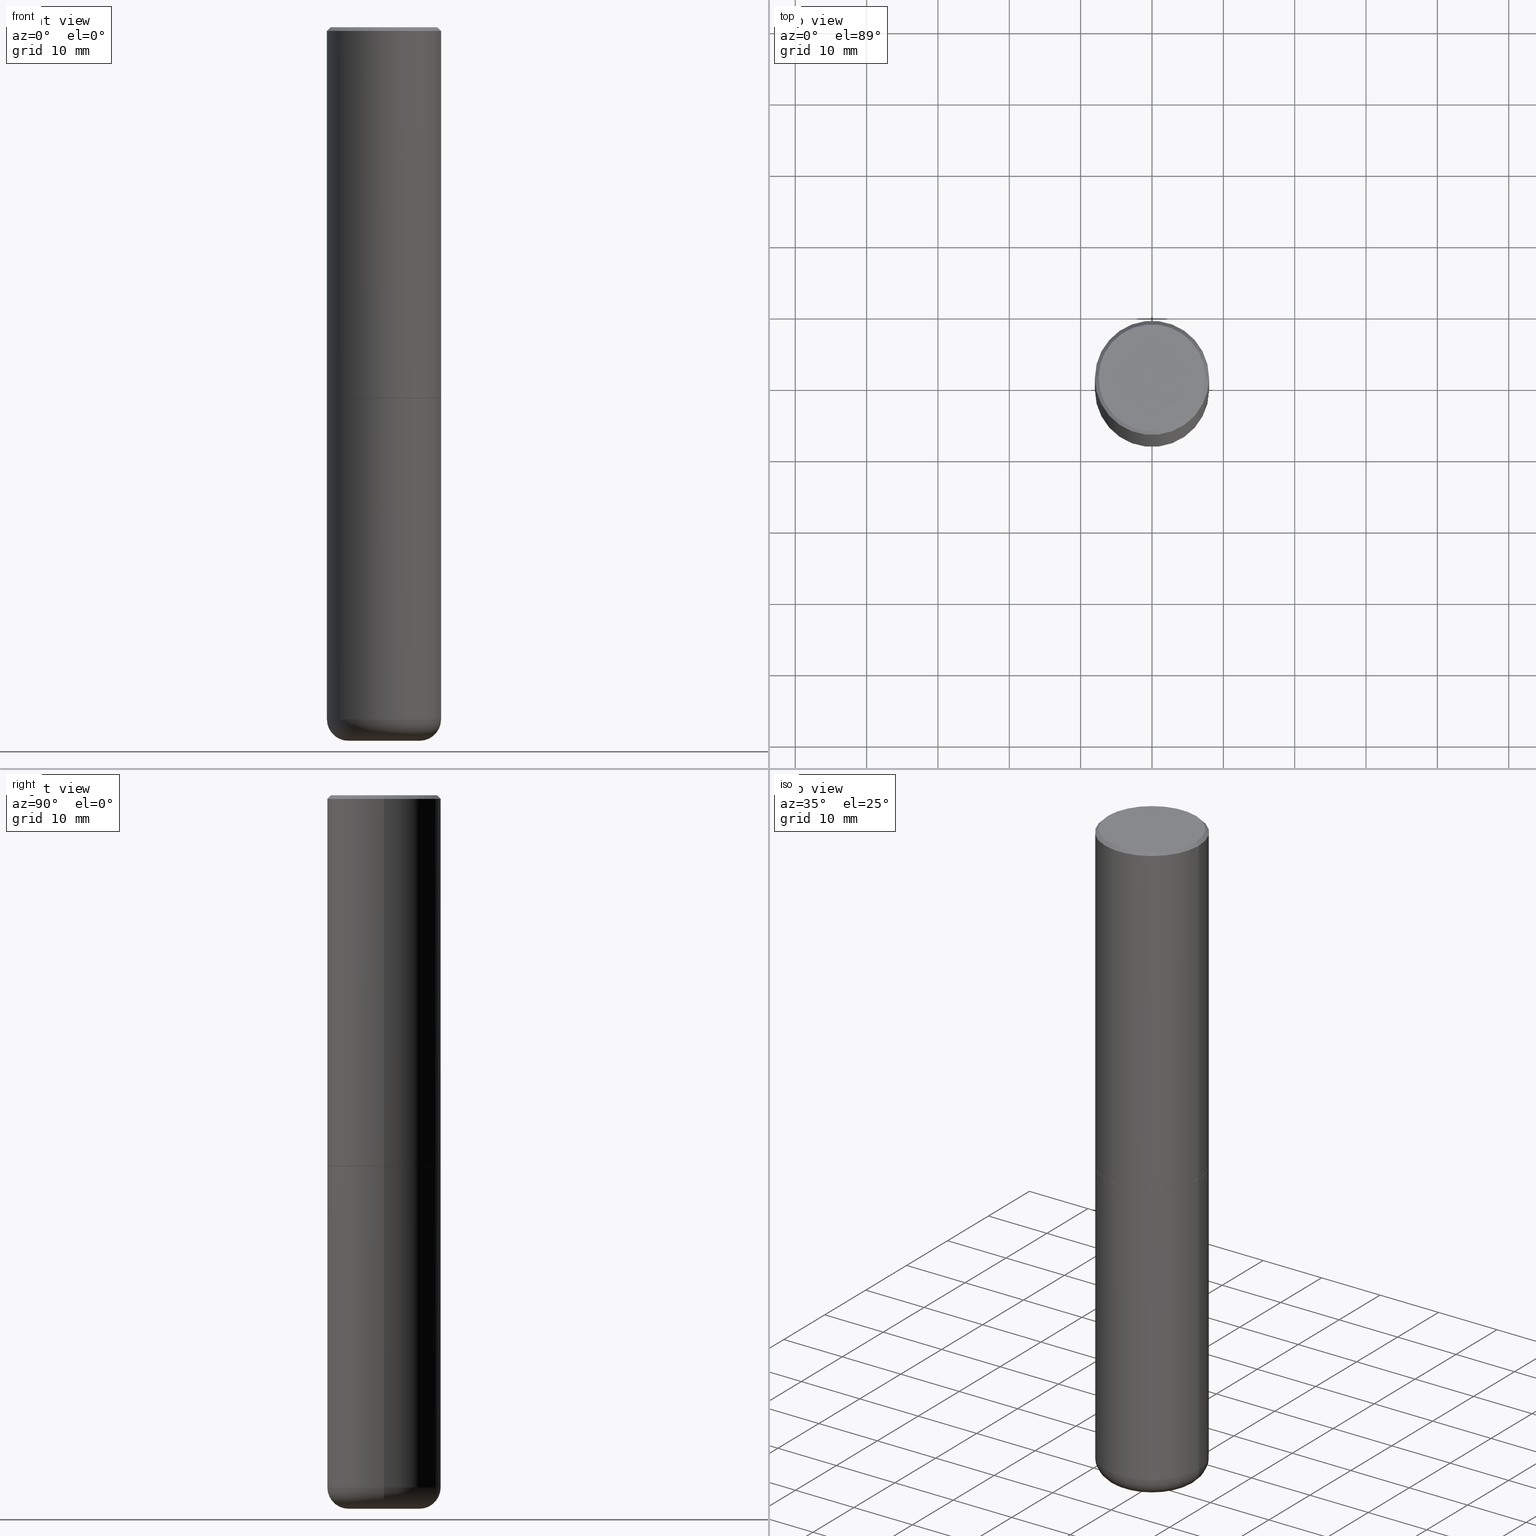
[diagram: canonical four-view strip — front | top / right | iso, engineering-drawing reading convention]
A machine part, canonical four-view strip (front | top / right | iso — engineering-drawing reading convention). The complete STEP part file that produces these views, byte-faithful:
ISO-10303-21;
HEADER;
FILE_DESCRIPTION (( 'STEP AP203' ),
    '1' );
FILE_NAME ('74770.STEP',
    '2024-05-02T19:17:29',
    ( '' ),
    ( '' ),
    'SwSTEP 2.0',
    'SolidWorks 2023',
    '' );
FILE_SCHEMA (( 'CONFIG_CONTROL_DESIGN' ));
ENDSEC;

DATA;
#1 = CARTESIAN_POINT ( 'NONE',  ( 4.890937612370289799E-31, -6.982962677686315028E-17, -0.02000000000000006981 ) ) ;
#2 = DIRECTION ( 'NONE',  ( -2.445468806185136597E-29, 3.491481338843145583E-15, 1.000000000000000000 ) ) ;
#3 = AXIS2_PLACEMENT_3D ( 'NONE', #181, #284, #86 ) ;
#4 = FACE_OUTER_BOUND ( 'NONE', #141, .T. ) ;
#5 = ADVANCED_FACE ( 'NONE', ( #23 ), #113, .T. ) ;
#6 = DIRECTION ( 'NONE',  ( -2.445468806185136597E-29, 3.491481338843145583E-15, 1.000000000000000000 ) ) ;
#7 = CARTESIAN_POINT ( 'NONE',  ( 0.3149499999999999522, -2.230543471175006661E-15, -0.02000000000000006981 ) ) ;
#8 = EDGE_LOOP ( 'NONE', ( #165, #135, #241, #230 ) ) ;
#9 = PLANE ( 'NONE',  #18 ) ;
#10 = AXIS2_PLACEMENT_3D ( 'NONE', #357, #205, #237 ) ;
#11 = PERSON_AND_ORGANIZATION_ROLE ( 'classification_officer' ) ;
#12 = VECTOR ( 'NONE', #303, 39.37007874015748143 ) ;
#13 = EDGE_CURVE ( 'NONE', #132, #396, #268, .T. ) ;
#14 = VERTEX_POINT ( 'NONE', #114 ) ;
#15 = PERSON_AND_ORGANIZATION ( #124, #193 ) ;
#16 = ORIENTED_EDGE ( 'NONE', *, *, #281, .T. ) ;
#17 = ORIENTED_EDGE ( 'NONE', *, *, #223, .F. ) ;
#18 = AXIS2_PLACEMENT_3D ( 'NONE', #391, #97, #300 ) ;
#19 = PRODUCT_DEFINITION_FORMATION_WITH_SPECIFIED_SOURCE ( 'ANY', '', #174, .NOT_KNOWN. ) ;
#20 = LINE ( 'NONE', #283, #341 ) ;
#21 = CC_DESIGN_PERSON_AND_ORGANIZATION_ASSIGNMENT ( #372, #178, ( #174 ) ) ;
#22 = CARTESIAN_POINT ( 'NONE',  ( 5.006363740022209999E-29, -7.147760596879685046E-15, -2.047199999999999243 ) ) ;
#23 = FACE_OUTER_BOUND ( 'NONE', #8, .T. ) ;
#24 = AXIS2_PLACEMENT_3D ( 'NONE', #265, #125, #297 ) ;
#25 = ORIENTED_EDGE ( 'NONE', *, *, #263, .F. ) ;
#26 = DIRECTION ( 'NONE',  ( -2.445468806185136877E-29, 3.491481338843145188E-15, 1.000000000000000000 ) ) ;
#27 = CARTESIAN_POINT ( 'NONE',  ( 5.006363740022209999E-29, -7.147760596879685046E-15, -2.047199999999999243 ) ) ;
#28 = CARTESIAN_POINT ( 'NONE',  ( 8.726305720484796028E-29, -1.820591954908441559E-15, -2.047200000000000131 ) ) ;
#29 = TOROIDAL_SURFACE ( 'NONE', #290, 0.1968500000000000250, 0.1181000000000000105 ) ;
#30 = LOCAL_TIME ( 15, 17, 29.00000000000000000, #142 ) ;
#31 = ADVANCED_BREP_SHAPE_REPRESENTATION ( '74770', ( #145, #289, #220 ), #323 ) ;
#32 = APPROVAL ( #365, 'UNSPECIFIED' ) ;
#33 = CARTESIAN_POINT ( 'NONE',  ( 0.000000000000000000, 0.000000000000000000, 0.000000000000000000 ) ) ;
#34 = DIRECTION ( 'NONE',  ( -1.000000000000000000, 6.982962677686265922E-15, -4.876176775795935793E-29 ) ) ;
#35 = DIRECTION ( 'NONE',  ( 1.000000000000000000, -6.982962677686265922E-15, 4.876176775795935232E-29 ) ) ;
#36 = ADVANCED_FACE ( 'NONE', ( #84 ), #219, .T. ) ;
#37 = CIRCLE ( 'NONE', #225, 0.1180999999999999966 ) ;
#38 = ORIENTED_EDGE ( 'NONE', *, *, #399, .F. ) ;
#39 = CARTESIAN_POINT ( 'NONE',  ( 0.2949499999999997679, -2.127023677808858891E-15, 1.835460370743323251E-16 ) ) ;
#40 =( CONVERSION_BASED_UNIT ( 'INCH', #43 ) LENGTH_UNIT ( ) NAMED_UNIT ( #308 ) );
#41 = UNCERTAINTY_MEASURE_WITH_UNIT (LENGTH_MEASURE( 1.000000000000000082E-05 ), #40, 'distance_accuracy_value', 'NONE');
#42 = DIRECTION ( 'NONE',  ( 1.000000000000000000, -6.982962677686265922E-15, 4.874125435057325556E-29 ) ) ;
#43 = LENGTH_MEASURE_WITH_UNIT ( LENGTH_MEASURE( 0.02539999999999999897 ), #98 );
#44 = CARTESIAN_POINT ( 'NONE',  ( 0.1968500000000000250, -1.470821428801063089E-14, -3.818900000000000183 ) ) ;
#45 = DIRECTION ( 'NONE',  ( 1.000000000000000000, 0.000000000000000000, 0.000000000000000000 ) ) ;
#46 = PRODUCT_DEFINITION_SHAPE ( 'NONE', 'NONE',  #168 ) ;
#47 = AXIS2_PLACEMENT_3D ( 'NONE', #89, #321, #35 ) ;
#48 = CARTESIAN_POINT ( 'NONE',  ( 9.627810689950883669E-29, -1.374596203102546341E-14, -3.937000000000000277 ) ) ;
#49 = ORIENTED_EDGE ( 'NONE', *, *, #103, .T. ) ;
#50 = CALENDAR_DATE ( 2024, 2, 5 ) ;
#51 = PERSON_AND_ORGANIZATION ( #124, #193 ) ;
#52 = ORIENTED_EDGE ( 'NONE', *, *, #414, .F. ) ;
#53 = ADVANCED_FACE ( 'NONE', ( #116 ), #29, .T. ) ;
#54 = EDGE_CURVE ( 'NONE', #118, #183, #61, .T. ) ;
#55 = CONICAL_SURFACE ( 'NONE', #115, 0.3139500000000000068, 0.7853981633976873100 ) ;
#56 = EDGE_LOOP ( 'NONE', ( #177, #413, #25, #264 ) ) ;
#57 = DIRECTION ( 'NONE',  ( -2.445468806185136597E-29, 3.491481338843145583E-15, 1.000000000000000000 ) ) ;
#58 = EDGE_CURVE ( 'NONE', #80, #224, #212, .T. ) ;
#59 = ORIENTED_EDGE ( 'NONE', *, *, #366, .T. ) ;
#60 = CIRCLE ( 'NONE', #155, 0.3149500000000002853 ) ;
#61 = LINE ( 'NONE', #376, #317 ) ;
#62 = FACE_OUTER_BOUND ( 'NONE', #354, .T. ) ;
#63 = CARTESIAN_POINT ( 'NONE',  ( 0.3149500000000000077, -9.347044692216978073E-15, -2.047199999999999687 ) ) ;
#64 = DIRECTION ( 'NONE',  ( 1.000000000000000000, -6.982962677686266711E-15, 0.000000000000000000 ) ) ;
#65 = VECTOR ( 'NONE', #340, 39.37007874015748143 ) ;
#66 = APPROVAL_PERSON_ORGANIZATION ( #307, #358, #243 ) ;
#67 = CARTESIAN_POINT ( 'NONE',  ( 0.3149499999999999522, -2.230543471175006661E-15, -0.02000000000000006981 ) ) ;
#68 = EDGE_CURVE ( 'NONE', #14, #411, #387, .T. ) ;
#69 = CARTESIAN_POINT ( 'NONE',  ( 9.339000823940418668E-29, -1.333361808490808928E-14, -3.818900000000000183 ) ) ;
#70 = ORIENTED_EDGE ( 'NONE', *, *, #380, .T. ) ;
#71 = ORIENTED_EDGE ( 'NONE', *, *, #153, .T. ) ;
#72 = CARTESIAN_POINT ( 'NONE',  ( 5.003918271216025517E-29, -7.144269115540843617E-15, -2.046199999999999797 ) ) ;
#73 = VECTOR ( 'NONE', #162, 39.37007874015748143 ) ;
#74 = DIRECTION ( 'NONE',  ( -2.445468806185136597E-29, 3.491481338843145583E-15, 1.000000000000000000 ) ) ;
#75 = EDGE_LOOP ( 'NONE', ( #52, #240, #248, #207 ) ) ;
#76 = DIRECTION ( 'NONE',  ( -1.000000000000000000, 6.982962677686265922E-15, -4.876176775795935793E-29 ) ) ;
#77 = CARTESIAN_POINT ( 'NONE',  ( 0.000000000000000000, 0.000000000000000000, 0.000000000000000000 ) ) ;
#78 = APPROVAL_ROLE ( '' ) ;
#79 = CIRCLE ( 'NONE', #367, 0.3149500000000000077 ) ;
#80 = VERTEX_POINT ( 'NONE', #148 ) ;
#81 = DIRECTION ( 'NONE',  ( -2.445468806185136597E-29, 3.491481338843145583E-15, 1.000000000000000000 ) ) ;
#82 = EDGE_CURVE ( 'NONE', #396, #224, #20, .T. ) ;
#83 = DIRECTION ( 'NONE',  ( 1.000000000000000000, -6.982962677686267499E-15, 0.000000000000000000 ) ) ;
#84 = FACE_OUTER_BOUND ( 'NONE', #112, .T. ) ;
#85 = ORIENTED_EDGE ( 'NONE', *, *, #223, .T. ) ;
#86 = DIRECTION ( 'NONE',  ( 1.000000000000000000, -6.982962677686269866E-15, 4.883557194083113462E-29 ) ) ;
#87 = DESIGN_CONTEXT ( 'detailed design', #371, 'design' ) ;
#88 = AXIS2_PLACEMENT_3D ( 'NONE', #361, #235, #76 ) ;
#89 = CARTESIAN_POINT ( 'NONE',  ( 0.000000000000000000, 0.000000000000000000, 0.000000000000000000 ) ) ;
#90 = DIRECTION ( 'NONE',  ( 1.000000000000000000, -6.982962677686264344E-15, 0.000000000000000000 ) ) ;
#91 = FACE_OUTER_BOUND ( 'NONE', #100, .T. ) ;
#92 = VERTEX_POINT ( 'NONE', #221 ) ;
#93 = DIRECTION ( 'NONE',  ( -2.445468806185136597E-29, 3.491481338843145583E-15, 1.000000000000000000 ) ) ;
#94 = EDGE_CURVE ( 'NONE', #92, #171, #146, .T. ) ;
#95 = DIRECTION ( 'NONE',  ( 1.000000000000000000, -6.982962677686267499E-15, 0.000000000000000000 ) ) ;
#96 = DIRECTION ( 'NONE',  ( 1.000000000000000000, -6.982962677686267499E-15, 0.000000000000000000 ) ) ;
#97 = DIRECTION ( 'NONE',  ( 2.438088387897960049E-29, -3.491481338843145188E-15, -1.000000000000000000 ) ) ;
#98 =( LENGTH_UNIT ( ) NAMED_UNIT ( * ) SI_UNIT ( $, .METRE. ) );
#99 = AXIS2_PLACEMENT_3D ( 'NONE', #373, #152, #343 ) ;
#100 = EDGE_LOOP ( 'NONE', ( #173, #403, #275, #199 ) ) ;
#101 = ORIENTED_EDGE ( 'NONE', *, *, #414, .T. ) ;
#102 = DIRECTION ( 'NONE',  ( -0.7071067811865465735, 2.468850131082246805E-15, -0.7071067811865484609 ) ) ;
#103 = EDGE_CURVE ( 'NONE', #14, #118, #255, .T. ) ;
#104 = DATE_AND_TIME ( #309, #280 ) ;
#105 = PERSON_AND_ORGANIZATION ( #124, #193 ) ;
#106 = VECTOR ( 'NONE', #102, 39.37007874015748143 ) ;
#107 = COORDINATED_UNIVERSAL_TIME_OFFSET ( 5, 0, .BEHIND. ) ;
#108 = ADVANCED_FACE ( 'NONE', ( #315 ), #378, .F. ) ;
#109 = EDGE_LOOP ( 'NONE', ( #16, #101, #144, #130 ) ) ;
#110 = CC_DESIGN_APPROVAL ( #32, ( #19 ) ) ;
#111 = APPROVAL_DATE_TIME ( #180, #32 ) ;
#112 = EDGE_LOOP ( 'NONE', ( #400, #85, #197, #359 ) ) ;
#113 = CYLINDRICAL_SURFACE ( 'NONE', #129, 0.3149500000000001743 ) ;
#114 = CARTESIAN_POINT ( 'NONE',  ( 0.3139500000000000068, -9.340061729539288903E-15, -2.047199999999999243 ) ) ;
#115 = AXIS2_PLACEMENT_3D ( 'NONE', #27, #154, #194 ) ;
#116 = FACE_OUTER_BOUND ( 'NONE', #258, .T. ) ;
#117 = CC_DESIGN_PERSON_AND_ORGANIZATION_ASSIGNMENT ( #402, #11, ( #412 ) ) ;
#118 = VERTEX_POINT ( 'NONE', #327 ) ;
#119 = DIRECTION ( 'NONE',  ( -2.445468806185136597E-29, 3.491481338843145583E-15, 1.000000000000000000 ) ) ;
#120 = VECTOR ( 'NONE', #401, 39.37007874015748143 ) ;
#121 = DIRECTION ( 'NONE',  ( -2.445468806185136597E-29, 3.491481338843145583E-15, 1.000000000000000000 ) ) ;
#122 = LOCAL_TIME ( 15, 17, 29.00000000000000000, #107 ) ;
#123 = CYLINDRICAL_SURFACE ( 'NONE', #47, 0.3149500000000001743 ) ;
#124 = PERSON ( 'UNSPECIFIED', 'UNSPECIFIED', 'UNSPECIFIED', ('UNSPECIFIED'), ('UNSPECIFIED'), ('UNSPECIFIED') ) ;
#125 = DIRECTION ( 'NONE',  ( 2.445468806185136597E-29, -3.491481338843145583E-15, -1.000000000000000000 ) ) ;
#126 = ADVANCED_FACE ( 'NONE', ( #270 ), #393, .T. ) ;
#127 = FACE_OUTER_BOUND ( 'NONE', #109, .T. ) ;
#128 = AXIS2_PLACEMENT_3D ( 'NONE', #33, #293, #267 ) ;
#129 = AXIS2_PLACEMENT_3D ( 'NONE', #257, #282, #415 ) ;
#130 = ORIENTED_EDGE ( 'NONE', *, *, #82, .F. ) ;
#131 = CARTESIAN_POINT ( 'NONE',  ( 5.003918271216025517E-29, -7.144269115540843617E-15, -2.046199999999999797 ) ) ;
#132 = VERTEX_POINT ( 'NONE', #295 ) ;
#133 = DIRECTION ( 'NONE',  ( 1.000000000000000000, -6.982962677686265922E-15, 4.874125435057325556E-29 ) ) ;
#134 = DATE_AND_TIME ( #301, #30 ) ;
#135 = ORIENTED_EDGE ( 'NONE', *, *, #311, .T. ) ;
#136 = DIRECTION ( 'NONE',  ( 1.000000000000000000, -6.982962677686269866E-15, 0.000000000000000000 ) ) ;
#137 = CIRCLE ( 'NONE', #328, 0.3139500000000000068 ) ;
#138 = SHAPE_DEFINITION_REPRESENTATION ( #46, #31 ) ;
#139 = PERSON_AND_ORGANIZATION ( #124, #193 ) ;
#140 = APPROVAL_STATUS ( 'not_yet_approved' ) ;
#141 = EDGE_LOOP ( 'NONE', ( #407, #364, #370, #397 ) ) ;
#142 = COORDINATED_UNIVERSAL_TIME_OFFSET ( 5, 0, .BEHIND. ) ;
#143 = CIRCLE ( 'NONE', #382, 0.2949499999999997679 ) ;
#144 = ORIENTED_EDGE ( 'NONE', *, *, #380, .F. ) ;
#145 = MANIFOLD_SOLID_BREP ( 'Body-Move/Copy2[1]', #298 ) ;
#146 = LINE ( 'NONE', #342, #322 ) ;
#147 = COORDINATED_UNIVERSAL_TIME_OFFSET ( 5, 0, .BEHIND. ) ;
#148 = CARTESIAN_POINT ( 'NONE',  ( -0.3149500000000000077, -8.002834994617451969E-15, -2.047199999999999687 ) ) ;
#149 = DIRECTION ( 'NONE',  ( 1.000000000000000000, -6.982962677686269866E-15, 0.000000000000000000 ) ) ;
#150 = AXIS2_PLACEMENT_3D ( 'NONE', #316, #151, #351 ) ;
#151 = DIRECTION ( 'NONE',  ( -2.438088387897960049E-29, 3.491481338843145188E-15, 1.000000000000000000 ) ) ;
#152 = DIRECTION ( 'NONE',  ( -2.445468806185136597E-29, 3.491481338843145583E-15, 1.000000000000000000 ) ) ;
#153 = EDGE_CURVE ( 'NONE', #411, #14, #137, .T. ) ;
#154 = DIRECTION ( 'NONE',  ( -2.445468806185136597E-29, 3.491481338843145583E-15, 1.000000000000000000 ) ) ;
#155 = AXIS2_PLACEMENT_3D ( 'NONE', #131, #93, #95 ) ;
#156 = CIRCLE ( 'NONE', #404, 0.1180999999999999966 ) ;
#157 = DIRECTION ( 'NONE',  ( 1.000000000000000000, -6.982962677686266711E-15, 4.876176775795936353E-29 ) ) ;
#158 = LOCAL_TIME ( 15, 17, 29.00000000000000000, #338 ) ;
#159 = DIRECTION ( 'NONE',  ( -1.000000000000000000, 7.105427357601005014E-15, 0.000000000000000000 ) ) ;
#160 = FACE_OUTER_BOUND ( 'NONE', #56, .T. ) ;
#161 = CC_DESIGN_DATE_AND_TIME_ASSIGNMENT ( #363, #369, ( #412 ) ) ;
#162 = DIRECTION ( 'NONE',  ( -0.7071067811867165487, 7.493145998870964739E-15, 0.7071067811863784858 ) ) ;
#163 = AXIS2_PLACEMENT_3D ( 'NONE', #228, #2, #90 ) ;
#164 = APPROVAL_PERSON_ORGANIZATION ( #51, #410, #337 ) ;
#165 = ORIENTED_EDGE ( 'NONE', *, *, #94, .F. ) ;
#166 = PLANE ( 'NONE',  #88 ) ;
#167 = APPLICATION_PROTOCOL_DEFINITION ( 'international standard', 'config_control_design', 1994, #345 ) ;
#168 = PRODUCT_DEFINITION ( 'UNKNOWN', '', #19, #87 ) ;
#169 = EDGE_LOOP ( 'NONE', ( #70, #379 ) ) ;
#170 = ORIENTED_EDGE ( 'NONE', *, *, #311, .F. ) ;
#171 = VERTEX_POINT ( 'NONE', #349 ) ;
#172 = FACE_OUTER_BOUND ( 'NONE', #204, .T. ) ;
#173 = ORIENTED_EDGE ( 'NONE', *, *, #68, .T. ) ;
#174 = PRODUCT ( '74770', '74770', '', ( #362 ) ) ;
#175 = LINE ( 'NONE', #7, #120 ) ;
#176 = AXIS2_PLACEMENT_3D ( 'NONE', #273, #6, #133 ) ;
#177 = ORIENTED_EDGE ( 'NONE', *, *, #184, .T. ) ;
#178 = PERSON_AND_ORGANIZATION_ROLE ( 'design_owner' ) ;
#179 = EDGE_LOOP ( 'NONE', ( #306, #250 ) ) ;
#180 = DATE_AND_TIME ( #50, #158 ) ;
#181 = CARTESIAN_POINT ( 'NONE',  ( 9.339000823940418668E-29, -1.333361808490808928E-14, -3.818900000000000183 ) ) ;
#182 = AXIS2_PLACEMENT_3D ( 'NONE', #48, #81, #83 ) ;
#183 = VERTEX_POINT ( 'NONE', #67 ) ;
#184 = EDGE_CURVE ( 'NONE', #118, #92, #60, .T. ) ;
#185 = DIRECTION ( 'NONE',  ( -2.445468806185136877E-29, 3.491481338843145188E-15, 1.000000000000000000 ) ) ;
#186 = EDGE_LOOP ( 'NONE', ( #236, #287 ) ) ;
#187 = AXIS2_PLACEMENT_3D ( 'NONE', #72, #74, #96 ) ;
#188 = ORIENTED_EDGE ( 'NONE', *, *, #320, .F. ) ;
#189 = ADVANCED_FACE ( 'NONE', ( #262 ), #288, .F. ) ;
#190 = DIRECTION ( 'NONE',  ( 1.000000000000000000, -6.982962677686264344E-15, 0.000000000000000000 ) ) ;
#191 = FACE_OUTER_BOUND ( 'NONE', #75, .T. ) ;
#192 = CIRCLE ( 'NONE', #10, 0.1968500000000000250 ) ;
#193 = ORGANIZATION ( 'UNSPECIFIED', 'UNSPECIFIED', '' ) ;
#194 = DIRECTION ( 'NONE',  ( 1.000000000000000000, -6.982962677686264344E-15, 0.000000000000000000 ) ) ;
#195 = CC_DESIGN_PERSON_AND_ORGANIZATION_ASSIGNMENT ( #15, #206, ( #19 ) ) ;
#196 = CARTESIAN_POINT ( 'NONE',  ( 0.000000000000000000, 0.000000000000000000, 0.000000000000000000 ) ) ;
#197 = ORIENTED_EDGE ( 'NONE', *, *, #281, .F. ) ;
#198 = CYLINDRICAL_SURFACE ( 'NONE', #128, 0.3149500000000000077 ) ;
#199 = ORIENTED_EDGE ( 'NONE', *, *, #103, .F. ) ;
#200 = DIRECTION ( 'NONE',  ( -2.445468806185136597E-29, 3.491481338843145583E-15, 1.000000000000000000 ) ) ;
#201 = CIRCLE ( 'NONE', #238, 0.3149500000000000077 ) ;
#202 = EDGE_CURVE ( 'NONE', #171, #183, #336, .T. ) ;
#203 = ORIENTED_EDGE ( 'NONE', *, *, #408, .F. ) ;
#204 = EDGE_LOOP ( 'NONE', ( #203, #188 ) ) ;
#205 = DIRECTION ( 'NONE',  ( -2.445468806185136597E-29, 3.491481338843145583E-15, 1.000000000000000000 ) ) ;
#206 = PERSON_AND_ORGANIZATION_ROLE ( 'creator' ) ;
#207 = ORIENTED_EDGE ( 'NONE', *, *, #58, .F. ) ;
#208 = CARTESIAN_POINT ( 'NONE',  ( -0.2949499999999997679, 2.094539655171994924E-15, 1.835460370743031619E-16 ) ) ;
#209 = DIRECTION ( 'NONE',  ( 0.000000000000000000, 0.000000000000000000, 1.000000000000000000 ) ) ;
#210 = ADVANCED_FACE ( 'NONE', ( #4 ), #313, .T. ) ;
#211 = CARTESIAN_POINT ( 'NONE',  ( 0.3149500000000000077, -1.553290218024537915E-14, -3.818900000000000183 ) ) ;
#212 = CIRCLE ( 'NONE', #99, 0.3149500000000000077 ) ;
#213 = CC_DESIGN_APPROVAL ( #410, ( #412 ) ) ;
#214 = SECURITY_CLASSIFICATION_LEVEL ( 'unclassified' ) ;
#215 = PRODUCT_RELATED_PRODUCT_CATEGORY ( 'detail', '', ( #174 ) ) ;
#216 =( NAMED_UNIT ( * ) PLANE_ANGLE_UNIT ( ) SI_UNIT ( $, .RADIAN. ) );
#217 = CARTESIAN_POINT ( 'NONE',  ( 0.3139500000000000068, -9.340061729539288903E-15, -2.047199999999999243 ) ) ;
#218 = ADVANCED_FACE ( 'NONE', ( #62 ), #266, .T. ) ;
#219 = TOROIDAL_SURFACE ( 'NONE', #3, 0.1968500000000000250, 0.1181000000000000105 ) ;
#220 = AXIS2_PLACEMENT_3D ( 'NONE', #77, #209, #45 ) ;
#221 = CARTESIAN_POINT ( 'NONE',  ( -0.3149500000000002853, -1.369195024882414317E-15, -2.046199999999999797 ) ) ;
#222 = VERTEX_POINT ( 'NONE', #384 ) ;
#223 = EDGE_CURVE ( 'NONE', #222, #132, #156, .T. ) ;
#224 = VERTEX_POINT ( 'NONE', #63 ) ;
#225 = AXIS2_PLACEMENT_3D ( 'NONE', #44, #394, #389 ) ;
#226 = DIRECTION ( 'NONE',  ( -1.000000000000000000, 6.982962677686266711E-15, 0.000000000000000000 ) ) ;
#227 = DIRECTION ( 'NONE',  ( 7.105427357601001859E-15, 1.000000000000000000, -3.491481338843145583E-15 ) ) ;
#228 = CARTESIAN_POINT ( 'NONE',  ( 5.006363740022209999E-29, -7.147760596879685046E-15, -2.047199999999999243 ) ) ;
#229 = ADVANCED_FACE ( 'NONE', ( #191 ), #319, .T. ) ;
#230 = ORIENTED_EDGE ( 'NONE', *, *, #202, .F. ) ;
#231 = CARTESIAN_POINT ( 'NONE',  ( -0.1968500000000000250, -1.193491470956433228E-14, -3.818900000000000183 ) ) ;
#232 = ORIENTED_EDGE ( 'NONE', *, *, #320, .T. ) ;
#233 = CARTESIAN_POINT ( 'NONE',  ( -0.3139500000000000068, -4.917011677960851648E-15, -2.047199999999999243 ) ) ;
#234 = ADVANCED_FACE ( 'NONE', ( #160 ), #123, .T. ) ;
#235 = DIRECTION ( 'NONE',  ( 2.438088387897960049E-29, -3.491481338843145188E-15, -1.000000000000000000 ) ) ;
#236 = ORIENTED_EDGE ( 'NONE', *, *, #68, .F. ) ;
#237 = DIRECTION ( 'NONE',  ( 1.000000000000000000, -6.982962677686267499E-15, 0.000000000000000000 ) ) ;
#238 = AXIS2_PLACEMENT_3D ( 'NONE', #329, #302, #136 ) ;
#239 = DATE_TIME_ROLE ( 'creation_date' ) ;
#240 = ORIENTED_EDGE ( 'NONE', *, *, #13, .T. ) ;
#241 = ORIENTED_EDGE ( 'NONE', *, *, #54, .T. ) ;
#242 = DIRECTION ( 'NONE',  ( 1.000000000000000000, -6.982962677686269866E-15, 0.000000000000000000 ) ) ;
#243 = APPROVAL_ROLE ( '' ) ;
#244 = CC_DESIGN_PERSON_AND_ORGANIZATION_ASSIGNMENT ( #406, #374, ( #19 ) ) ;
#245 = AXIS2_PLACEMENT_3D ( 'NONE', #346, #348, #226 ) ;
#246 = CLOSED_SHELL ( 'NONE', ( #251, #234, #210, #126, #5, #218, #108, #390 ) ) ;
#247 = CALENDAR_DATE ( 2024, 2, 5 ) ;
#248 = ORIENTED_EDGE ( 'NONE', *, *, #82, .T. ) ;
#249 = CARTESIAN_POINT ( 'NONE',  ( -0.3139500000000000068, -4.911713223612628457E-15, -2.047199999999999243 ) ) ;
#250 = ORIENTED_EDGE ( 'NONE', *, *, #377, .T. ) ;
#251 = ADVANCED_FACE ( 'NONE', ( #91 ), #55, .T. ) ;
#252 = VERTEX_POINT ( 'NONE', #324 ) ;
#253 = ORIENTED_EDGE ( 'NONE', *, *, #202, .T. ) ;
#254 = AXIS2_PLACEMENT_3D ( 'NONE', #22, #119, #312 ) ;
#255 = LINE ( 'NONE', #217, #65 ) ;
#256 = ADVANCED_FACE ( 'NONE', ( #127 ), #198, .T. ) ;
#257 = CARTESIAN_POINT ( 'NONE',  ( 0.000000000000000000, 0.000000000000000000, 0.000000000000000000 ) ) ;
#258 = EDGE_LOOP ( 'NONE', ( #17, #232, #59, #381 ) ) ;
#259 = CIRCLE ( 'NONE', #375, 0.3149499999999999522 ) ;
#260 = LOCAL_TIME ( 15, 17, 29.00000000000000000, #272 ) ;
#261 = DIRECTION ( 'NONE',  ( -2.445468806185136597E-29, 3.491481338843145583E-15, 1.000000000000000000 ) ) ;
#262 = FACE_OUTER_BOUND ( 'NONE', #169, .T. ) ;
#263 = EDGE_CURVE ( 'NONE', #183, #171, #259, .T. ) ;
#264 = ORIENTED_EDGE ( 'NONE', *, *, #54, .F. ) ;
#265 = CARTESIAN_POINT ( 'NONE',  ( 4.890937612370289799E-31, -6.982962677686315028E-17, -0.02000000000000006981 ) ) ;
#266 = CONICAL_SURFACE ( 'NONE', #163, 0.3139500000000000068, 0.7853981633976873100 ) ;
#267 = DIRECTION ( 'NONE',  ( 1.000000000000000000, -6.982962677686266711E-15, 4.876176775795936353E-29 ) ) ;
#268 = CIRCLE ( 'NONE', #285, 0.3149500000000000077 ) ;
#269 = EDGE_CURVE ( 'NONE', #411, #92, #386, .T. ) ;
#270 = FACE_OUTER_BOUND ( 'NONE', #353, .T. ) ;
#271 = FACE_OUTER_BOUND ( 'NONE', #179, .T. ) ;
#272 = COORDINATED_UNIVERSAL_TIME_OFFSET ( 5, 0, .BEHIND. ) ;
#273 = CARTESIAN_POINT ( 'NONE',  ( -4.488561081641444621E-45, 6.408475632635922878E-31, 1.835460370743176819E-16 ) ) ;
#274 = CC_DESIGN_APPROVAL ( #358, ( #168 ) ) ;
#275 = ORIENTED_EDGE ( 'NONE', *, *, #184, .F. ) ;
#276 =( NAMED_UNIT ( * ) SI_UNIT ( $, .STERADIAN. ) SOLID_ANGLE_UNIT ( ) );
#277 = PERSON_AND_ORGANIZATION_ROLE ( 'creator' ) ;
#278 = APPROVAL_DATE_TIME ( #104, #410 ) ;
#279 = AXIS2_PLACEMENT_3D ( 'NONE', #196, #121, #157 ) ;
#280 = LOCAL_TIME ( 15, 17, 29.00000000000000000, #147 ) ;
#281 = EDGE_CURVE ( 'NONE', #396, #132, #79, .T. ) ;
#282 = DIRECTION ( 'NONE',  ( -2.445468806185136597E-29, 3.491481338843145583E-15, 1.000000000000000000 ) ) ;
#283 = CARTESIAN_POINT ( 'NONE',  ( 0.3149500000000000077, -2.199284095337289871E-15, 1.535751875536930130E-29 ) ) ;
#284 = DIRECTION ( 'NONE',  ( -2.445468806185136597E-29, 3.491481338843145583E-15, 1.000000000000000000 ) ) ;
#285 = AXIS2_PLACEMENT_3D ( 'NONE', #318, #57, #149 ) ;
#286 = DIRECTION ( 'NONE',  ( -2.445468806185136877E-29, 3.491481338843145188E-15, 1.000000000000000000 ) ) ;
#287 = ORIENTED_EDGE ( 'NONE', *, *, #153, .F. ) ;
#288 = PLANE ( 'NONE',  #350 ) ;
#289 = MANIFOLD_SOLID_BREP ( 'Body-Move/Copy2[2]', #246 ) ;
#290 = AXIS2_PLACEMENT_3D ( 'NONE', #314, #339, #344 ) ;
#291 = CC_DESIGN_PERSON_AND_ORGANIZATION_ASSIGNMENT ( #139, #277, ( #168 ) ) ;
#292 = DIRECTION ( 'NONE',  ( -2.445468806185136597E-29, 3.491481338843145583E-15, 1.000000000000000000 ) ) ;
#293 = DIRECTION ( 'NONE',  ( -2.445468806185136597E-29, 3.491481338843145583E-15, 1.000000000000000000 ) ) ;
#294 = VERTEX_POINT ( 'NONE', #39 ) ;
#295 = CARTESIAN_POINT ( 'NONE',  ( -0.3149500000000000077, -1.109576373863165330E-14, -3.818900000000000183 ) ) ;
#296 = CIRCLE ( 'NONE', #187, 0.3149500000000002853 ) ;
#297 = DIRECTION ( 'NONE',  ( -1.000000000000000000, 6.982962677686266711E-15, 0.000000000000000000 ) ) ;
#298 = CLOSED_SHELL ( 'NONE', ( #256, #36, #189, #229, #53, #347 ) ) ;
#299 = VERTEX_POINT ( 'NONE', #208 ) ;
#300 = DIRECTION ( 'NONE',  ( -1.000000000000000000, 6.982962677686265922E-15, -4.876176775795935793E-29 ) ) ;
#301 = CALENDAR_DATE ( 2024, 2, 5 ) ;
#302 = DIRECTION ( 'NONE',  ( -2.445468806185136597E-29, 3.491481338843145583E-15, 1.000000000000000000 ) ) ;
#303 = DIRECTION ( 'NONE',  ( -2.445468806185136877E-29, 3.491481338843145188E-15, 1.000000000000000000 ) ) ;
#304 = CIRCLE ( 'NONE', #176, 0.2949499999999997679 ) ;
#305 = APPROVAL_PERSON_ORGANIZATION ( #105, #32, #78 ) ;
#306 = ORIENTED_EDGE ( 'NONE', *, *, #392, .T. ) ;
#307 = PERSON_AND_ORGANIZATION ( #124, #193 ) ;
#308 = DIMENSIONAL_EXPONENTS ( 1.000000000000000000, 0.000000000000000000, 0.000000000000000000, 0.000000000000000000, 0.000000000000000000, 0.000000000000000000, 0.000000000000000000 ) ;
#309 = CALENDAR_DATE ( 2024, 2, 5 ) ;
#310 = CARTESIAN_POINT ( 'NONE',  ( -0.3149500000000000077, 2.237854346276435590E-15, -1.549218606675782676E-29 ) ) ;
#311 = EDGE_CURVE ( 'NONE', #92, #118, #296, .T. ) ;
#312 = DIRECTION ( 'NONE',  ( 1.000000000000000000, -6.982962677686264344E-15, 0.000000000000000000 ) ) ;
#313 = CONICAL_SURFACE ( 'NONE', #24, 0.3149499999999999522, 0.7853981633974469467 ) ;
#314 = CARTESIAN_POINT ( 'NONE',  ( 9.339000823940418668E-29, -1.333361808490808928E-14, -3.818900000000000183 ) ) ;
#315 = FACE_OUTER_BOUND ( 'NONE', #186, .T. ) ;
#316 = CARTESIAN_POINT ( 'NONE',  ( 5.006363740022211680E-29, -7.147760596879688202E-15, -2.047200000000000131 ) ) ;
#317 = VECTOR ( 'NONE', #26, 39.37007874015748143 ) ;
#318 = CARTESIAN_POINT ( 'NONE',  ( 9.339000823940418668E-29, -1.333361808490808928E-14, -3.818900000000000183 ) ) ;
#319 = CYLINDRICAL_SURFACE ( 'NONE', #279, 0.3149500000000000077 ) ;
#320 = EDGE_CURVE ( 'NONE', #222, #252, #192, .T. ) ;
#321 = DIRECTION ( 'NONE',  ( -2.445468806185136597E-29, 3.491481338843145583E-15, 1.000000000000000000 ) ) ;
#322 = VECTOR ( 'NONE', #185, 39.37007874015748143 ) ;
#323 =( GEOMETRIC_REPRESENTATION_CONTEXT ( 3 ) GLOBAL_UNCERTAINTY_ASSIGNED_CONTEXT ( ( #41 ) ) GLOBAL_UNIT_ASSIGNED_CONTEXT ( ( #40, #216, #276 ) ) REPRESENTATION_CONTEXT ( 'NONE', 'WORKASPACE' ) );
#324 = CARTESIAN_POINT ( 'NONE',  ( 0.1968500000000000250, -1.512055823412800660E-14, -3.937000000000000277 ) ) ;
#325 = EDGE_CURVE ( 'NONE', #299, #171, #334, .T. ) ;
#326 = CARTESIAN_POINT ( 'NONE',  ( 4.890937612370289799E-31, -6.982962677686315028E-17, -0.02000000000000006981 ) ) ;
#327 = CARTESIAN_POINT ( 'NONE',  ( 0.3149500000000002853, -9.343553210878135066E-15, -2.046199999999999797 ) ) ;
#328 = AXIS2_PLACEMENT_3D ( 'NONE', #352, #292, #190 ) ;
#329 = CARTESIAN_POINT ( 'NONE',  ( 5.006363740022211120E-29, -7.147760596879686624E-15, -2.047199999999999687 ) ) ;
#330 = LINE ( 'NONE', #310, #12 ) ;
#331 = CARTESIAN_POINT ( 'NONE',  ( -0.3149499999999999522, 2.129454468560426178E-15, -0.02000000000000006981 ) ) ;
#332 = CALENDAR_DATE ( 2024, 2, 5 ) ;
#333 = CC_DESIGN_DATE_AND_TIME_ASSIGNMENT ( #398, #239, ( #168 ) ) ;
#334 = LINE ( 'NONE', #331, #106 ) ;
#335 = APPROVAL_DATE_TIME ( #134, #358 ) ;
#336 = CIRCLE ( 'NONE', #417, 0.3149499999999999522 ) ;
#337 = APPROVAL_ROLE ( '' ) ;
#338 = COORDINATED_UNIVERSAL_TIME_OFFSET ( 5, 0, .BEHIND. ) ;
#339 = DIRECTION ( 'NONE',  ( -2.445468806185136597E-29, 3.491481338843145583E-15, 1.000000000000000000 ) ) ;
#340 = DIRECTION ( 'NONE',  ( 0.7071067811867165487, -2.468850131084027659E-15, 0.7071067811863784858 ) ) ;
#341 = VECTOR ( 'NONE', #286, 39.37007874015748143 ) ;
#342 = CARTESIAN_POINT ( 'NONE',  ( -0.3149500000000001743, 2.237854346276436774E-15, -1.549218606675783237E-29 ) ) ;
#343 = DIRECTION ( 'NONE',  ( 1.000000000000000000, -6.982962677686269866E-15, 0.000000000000000000 ) ) ;
#344 = DIRECTION ( 'NONE',  ( 1.000000000000000000, -6.982962677686269866E-15, 4.883557194083113462E-29 ) ) ;
#345 = APPLICATION_CONTEXT ( 'configuration controlled 3d designs of mechanical parts and assemblies' ) ;
#346 = CARTESIAN_POINT ( 'NONE',  ( 4.890937612370289799E-31, -6.982962677686315028E-17, -0.02000000000000006981 ) ) ;
#347 = ADVANCED_FACE ( 'NONE', ( #172 ), #166, .T. ) ;
#348 = DIRECTION ( 'NONE',  ( 2.445468806185136597E-29, -3.491481338843145583E-15, -1.000000000000000000 ) ) ;
#349 = CARTESIAN_POINT ( 'NONE',  ( -0.3149499999999999522, 2.129454468560426178E-15, -0.02000000000000006981 ) ) ;
#350 = AXIS2_PLACEMENT_3D ( 'NONE', #28, #383, #34 ) ;
#351 = DIRECTION ( 'NONE',  ( 1.000000000000000000, -6.982962677686265922E-15, 4.876176775795935793E-29 ) ) ;
#352 = CARTESIAN_POINT ( 'NONE',  ( 5.006363740022209999E-29, -7.147760596879685046E-15, -2.047199999999999243 ) ) ;
#353 = EDGE_LOOP ( 'NONE', ( #38, #385, #409, #253 ) ) ;
#354 = EDGE_LOOP ( 'NONE', ( #360, #71, #49, #170 ) ) ;
#355 = CARTESIAN_POINT ( 'NONE',  ( -4.488561081641444621E-45, 6.408475632635922878E-31, 1.835460370743176819E-16 ) ) ;
#356 = CIRCLE ( 'NONE', #182, 0.1968500000000000250 ) ;
#357 = CARTESIAN_POINT ( 'NONE',  ( 9.627810689950883669E-29, -1.374596203102546341E-14, -3.937000000000000277 ) ) ;
#358 = APPROVAL ( #368, 'UNSPECIFIED' ) ;
#359 = ORIENTED_EDGE ( 'NONE', *, *, #366, .F. ) ;
#360 = ORIENTED_EDGE ( 'NONE', *, *, #269, .F. ) ;
#361 = CARTESIAN_POINT ( 'NONE',  ( 9.627810689950883669E-29, -1.374596203102546341E-14, -3.937000000000000277 ) ) ;
#362 = MECHANICAL_CONTEXT ( 'NONE', #345, 'mechanical' ) ;
#363 = DATE_AND_TIME ( #247, #122 ) ;
#364 = ORIENTED_EDGE ( 'NONE', *, *, #399, .T. ) ;
#365 = APPROVAL_STATUS ( 'not_yet_approved' ) ;
#366 = EDGE_CURVE ( 'NONE', #252, #396, #37, .T. ) ;
#367 = AXIS2_PLACEMENT_3D ( 'NONE', #69, #261, #242 ) ;
#368 = APPROVAL_STATUS ( 'not_yet_approved' ) ;
#369 = DATE_TIME_ROLE ( 'classification_date' ) ;
#370 = ORIENTED_EDGE ( 'NONE', *, *, #263, .T. ) ;
#371 = APPLICATION_CONTEXT ( 'configuration controlled 3d designs of mechanical parts and assemblies' ) ;
#372 = PERSON_AND_ORGANIZATION ( #124, #193 ) ;
#373 = CARTESIAN_POINT ( 'NONE',  ( 5.006363740022211120E-29, -7.147760596879686624E-15, -2.047199999999999687 ) ) ;
#374 = PERSON_AND_ORGANIZATION_ROLE ( 'design_supplier' ) ;
#375 = AXIS2_PLACEMENT_3D ( 'NONE', #1, #416, #388 ) ;
#376 = CARTESIAN_POINT ( 'NONE',  ( 0.3149500000000001743, -2.199284095337290660E-15, 1.535751875536930690E-29 ) ) ;
#377 = EDGE_CURVE ( 'NONE', #294, #299, #143, .T. ) ;
#378 = PLANE ( 'NONE',  #150 ) ;
#379 = ORIENTED_EDGE ( 'NONE', *, *, #58, .T. ) ;
#380 = EDGE_CURVE ( 'NONE', #224, #80, #201, .T. ) ;
#381 = ORIENTED_EDGE ( 'NONE', *, *, #13, .F. ) ;
#382 = AXIS2_PLACEMENT_3D ( 'NONE', #355, #200, #42 ) ;
#383 = DIRECTION ( 'NONE',  ( 2.438088387897960049E-29, -3.491481338843145188E-15, -1.000000000000000000 ) ) ;
#384 = CARTESIAN_POINT ( 'NONE',  ( -0.1968500000000000250, -1.172151119715668222E-14, -3.937000000000000277 ) ) ;
#385 = ORIENTED_EDGE ( 'NONE', *, *, #392, .F. ) ;
#386 = LINE ( 'NONE', #233, #73 ) ;
#387 = CIRCLE ( 'NONE', #254, 0.3139500000000000068 ) ;
#388 = DIRECTION ( 'NONE',  ( 1.000000000000000000, -6.982962677686266711E-15, 0.000000000000000000 ) ) ;
#389 = DIRECTION ( 'NONE',  ( 1.000000000000000000, -6.982962677686273021E-15, 0.000000000000000000 ) ) ;
#390 = ADVANCED_FACE ( 'NONE', ( #271 ), #9, .F. ) ;
#391 = CARTESIAN_POINT ( 'NONE',  ( 2.059624841783562486E-15, 0.2949499999999997679, -9.380394023546260134E-16 ) ) ;
#392 = EDGE_CURVE ( 'NONE', #299, #294, #304, .T. ) ;
#393 = CONICAL_SURFACE ( 'NONE', #245, 0.3149499999999999522, 0.7853981633974469467 ) ;
#394 = DIRECTION ( 'NONE',  ( -6.982962677686266711E-15, -1.000000000000000000, 3.491481338843145583E-15 ) ) ;
#395 = APPLICATION_PROTOCOL_DEFINITION ( 'international standard', 'config_control_design', 1994, #371 ) ;
#396 = VERTEX_POINT ( 'NONE', #211 ) ;
#397 = ORIENTED_EDGE ( 'NONE', *, *, #325, .F. ) ;
#398 = DATE_AND_TIME ( #332, #260 ) ;
#399 = EDGE_CURVE ( 'NONE', #294, #183, #175, .T. ) ;
#400 = ORIENTED_EDGE ( 'NONE', *, *, #408, .T. ) ;
#401 = DIRECTION ( 'NONE',  ( 0.7071067811865465735, -7.319954787623252890E-15, -0.7071067811865484609 ) ) ;
#402 = PERSON_AND_ORGANIZATION ( #124, #193 ) ;
#403 = ORIENTED_EDGE ( 'NONE', *, *, #269, .T. ) ;
#404 = AXIS2_PLACEMENT_3D ( 'NONE', #231, #227, #159 ) ;
#405 = CC_DESIGN_SECURITY_CLASSIFICATION ( #412, ( #19 ) ) ;
#406 = PERSON_AND_ORGANIZATION ( #124, #193 ) ;
#407 = ORIENTED_EDGE ( 'NONE', *, *, #377, .F. ) ;
#408 = EDGE_CURVE ( 'NONE', #252, #222, #356, .T. ) ;
#409 = ORIENTED_EDGE ( 'NONE', *, *, #325, .T. ) ;
#410 = APPROVAL ( #140, 'UNSPECIFIED' ) ;
#411 = VERTEX_POINT ( 'NONE', #249 ) ;
#412 = SECURITY_CLASSIFICATION ( '', '', #214 ) ;
#413 = ORIENTED_EDGE ( 'NONE', *, *, #94, .T. ) ;
#414 = EDGE_CURVE ( 'NONE', #132, #80, #330, .T. ) ;
#415 = DIRECTION ( 'NONE',  ( 1.000000000000000000, -6.982962677686265922E-15, 4.876176775795935232E-29 ) ) ;
#416 = DIRECTION ( 'NONE',  ( -2.445468806185136597E-29, 3.491481338843145583E-15, 1.000000000000000000 ) ) ;
#417 = AXIS2_PLACEMENT_3D ( 'NONE', #326, #418, #64 ) ;
#418 = DIRECTION ( 'NONE',  ( -2.445468806185136597E-29, 3.491481338843145583E-15, 1.000000000000000000 ) ) ;
ENDSEC;
END-ISO-10303-21;
